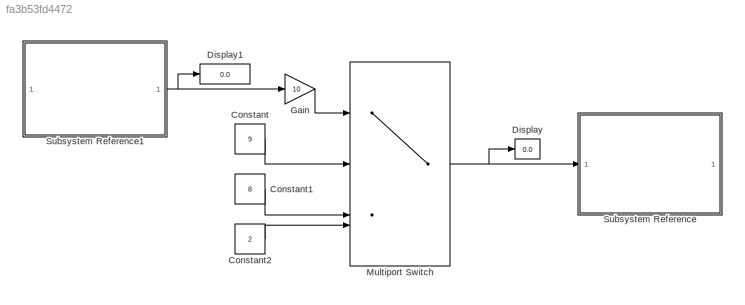
MODEL slx_fa3b53fd4472
KIND model
CONFIG AbsTol = auto
CONFIG EnableMultiTasking = on
CONFIG FixedStep = auto
CONFIG MaxStep = auto
CONFIG MinStep = auto
CONFIG RelTol = 1e-3
CONFIG SampleTimeConstraint = Unconstrained
CONFIG SolverName = FixedStepAuto
CONFIG StartTime = 0.0
CONFIG StopTime = inf
BLOCK [Constant] Constant
  Value = 9
BLOCK [Constant] Constant1
  Value = 8
BLOCK [Constant] Constant2
  Value = 2
BLOCK [Display] Display
  Decimation = 1
BLOCK [Display] Display1
  Decimation = 1
BLOCK [Gain] Gain
  Gain = 10
BLOCK [MultiPortSwitch] Multiport Switch
  DataPortIndices = {0,110,112}
  DataPortOrder = Specify indices
  InputSameDT = off
  SaturateOnIntegerOverflow = off
BLOCK [SubSystem] Subsystem Reference
  ReferencedSubsystem = Sub_Led
BLOCK [SubSystem] Subsystem Reference1
  ReferencedSubsystem = Sub_Bateria
LINE Constant1:1 -> Multiport Switch:3
LINE Constant2:1 -> Multiport Switch:4
LINE Constant:1 -> Multiport Switch:2
LINE Gain:1 -> Multiport Switch:1
NET Multiport Switch:1 -> Display:1, Subsystem Reference:1
NET Subsystem Reference1:1 -> Display1:1, Gain:1
note: NET lines group one-source signal fan-out (src -> all destinations, sorted); 1:1 wires keep LINE
